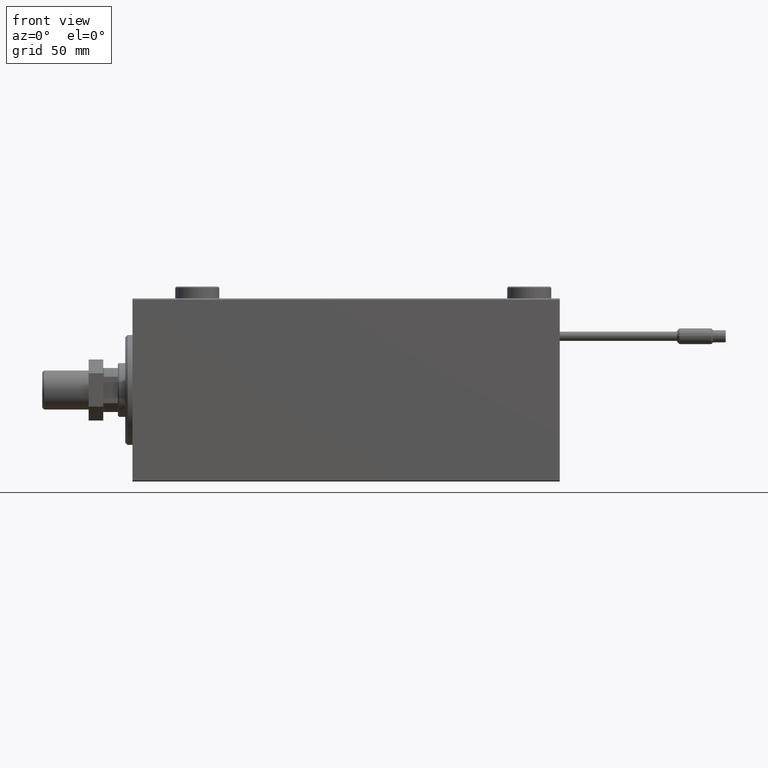
[diagram: clean part render]
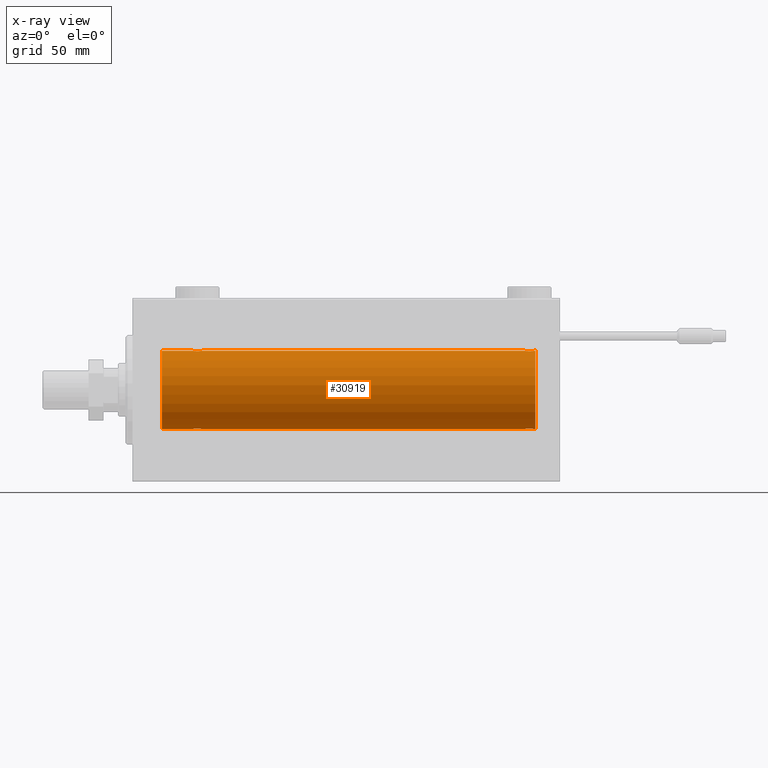
[diagram: x-ray — body ghosted, one internal face saturated and labeled with its STEP entity id]
A machine part, front view, then the same camera in x-ray: the body is ghosted and one INTERNAL B-rep face — a face not visible from any outside direction — is saturated and labeled: STEP entity #30919.
In plain terms, the highlighted cylindrical surface (partial cylindrical patch) has radius 16 mm, axis along (-1, -0, -0).
Its self-contained STEP definition (entity closure, byte-faithful):
#35 = DIRECTION ( 'NONE',  ( -1.000000000000000000, -0.000000000000000000, -0.000000000000000000 ) ) ;
#374 = CARTESIAN_POINT ( 'NONE',  ( 161.6115385917071876, -1.796613193944146980, 15.89889131367403330 ) ) ;
#675 = CARTESIAN_POINT ( 'NONE',  ( 163.7202803347841211, -1.589957129871039099, -15.92097237843275259 ) ) ;
#903 = CARTESIAN_POINT ( 'NONE',  ( 163.3859214996849119, -1.797863738508695963, 15.89874935709251247 ) ) ;
#913 = VERTEX_POINT ( 'NONE', #29705 ) ;
#1306 = CARTESIAN_POINT ( 'NONE',  ( 12.00000000000001066, 0.000000000000000000, 0.000000000000000000 ) ) ;
#1321 = CARTESIAN_POINT ( 'NONE',  ( 27.71821872840285295, -1.591545514129674821, 15.92081325887754595 ) ) ;
#1823 = CARTESIAN_POINT ( 'NONE',  ( 12.00000000000001066, 0.000000000000000000, 16.00000000000000000 ) ) ;
#1840 = CARTESIAN_POINT ( 'NONE',  ( 27.38592149968496514, -1.797863738508701736, 15.89874935709250892 ) ) ;
#2366 = CARTESIAN_POINT ( 'NONE',  ( 27.14376670717340545, -1.898087287925302125, 15.88709570026284545 ) ) ;
#2556 = CARTESIAN_POINT ( 'NONE',  ( 24.50000000000000711, -0.2645044045393414311, -16.00000000000000355 ) ) ;
#3226 = EDGE_CURVE ( 'NONE', #40123, #41906, #20302, .T. ) ;
#3342 = DIRECTION ( 'NONE',  ( -1.000000000000000000, -0.000000000000000000, -0.000000000000000000 ) ) ;
#3791 = VERTEX_POINT ( 'NONE', #24185 ) ;
#4138 = CARTESIAN_POINT ( 'NONE',  ( 164.4467400469564211, -0.5272875822566903681, 15.99312147175147381 ) ) ;
#4457 = CARTESIAN_POINT ( 'NONE',  ( 161.6140785003150029, -1.797863738508707954, -15.89874935709249826 ) ) ;
#4952 = CARTESIAN_POINT ( 'NONE',  ( 163.1437667071733983, -1.898087287925298128, 15.88709570026284723 ) ) ;
#5200 = VECTOR ( 'NONE', #53304, 1000.000000000000000 ) ;
#5311 = LINE ( 'NONE', #41423, #26629 ) ;
#5373 = CARTESIAN_POINT ( 'NONE',  ( 24.90061418674620342, -1.228793614424124714, 15.95381972293797368 ) ) ;
#5514 = CARTESIAN_POINT ( 'NONE',  ( 162.6336666317561708, -1.999904855391120506, -15.87451985347842331 ) ) ;
#5805 = CARTESIAN_POINT ( 'NONE',  ( 27.50320784791317763, -1.735114343256362712, -15.90580722143557502 ) ) ;
#5883 = CARTESIAN_POINT ( 'NONE',  ( 28.44674004695639624, -0.5272875822566815973, 15.99312147175146670 ) ) ;
#6120 = ORIENTED_EDGE ( 'NONE', *, *, #49186, .T. ) ;
#6150 = CARTESIAN_POINT ( 'NONE',  ( 28.24678128854693426, -1.008257970366811751, 15.97001510549667103 ) ) ;
#6332 = CARTESIAN_POINT ( 'NONE',  ( 27.82304844713206293, -1.505501573616970568, -15.92928245046054947 ) ) ;
#6596 = CARTESIAN_POINT ( 'NONE',  ( 28.09938581325380724, -1.228793614424118497, -15.95381972293796835 ) ) ;
#6634 = ORIENTED_EDGE ( 'NONE', *, *, #33338, .T. ) ;
#7135 = DIRECTION ( 'NONE',  ( -1.000000000000000000, -0.000000000000000000, -0.000000000000000000 ) ) ;
#8180 = CARTESIAN_POINT ( 'NONE',  ( 161.8536363712953801, -1.897207606501642996, 15.88720136683947537 ) ) ;
#8484 = CARTESIAN_POINT ( 'NONE',  ( 161.8562332928265732, -1.898087287925310562, -15.88709570026284723 ) ) ;
#8720 = EDGE_CURVE ( 'NONE', #3791, #50768, #50057, .T. ) ;
#8722 = CARTESIAN_POINT ( 'NONE',  ( 162.7608282034936167, -1.987201773464434051, 15.87613558886576115 ) ) ;
#8762 = CARTESIAN_POINT ( 'NONE',  ( 164.2481662700621428, -1.005876079953903268, -15.97016854943969832 ) ) ;
#8908 = B_SPLINE_CURVE_WITH_KNOTS ( 'NONE', 3,
 ( #34448, #30927, #30137, #51140, #5373, #18280, #26348, #46845, #21794, #9669, #38241, #26610, #14492, #47359, #34716, #38491, #2366, #1840, #43062, #1321, #22567, #42542, #6150, #5883, #50873, #17755 ),
 .UNSPECIFIED., .F., .F.,
 ( 4, 2, 2, 2, 2, 2, 2, 2, 2, 2, 2, 2, 4 ),
 ( 0.006259031236593858190, 0.007041222816026928080, 0.007823414395459998838, 0.008214510185176533349, 0.008605605974893067861, 0.008996701764609604107, 0.009387797554326138619, 0.009778893344042673130, 0.01016998913375920938, 0.01056108492347574389, 0.01095218071319227840, 0.01173437229262534048, 0.01251656387205840430 ),
 .UNSPECIFIED. ) ;
#8959 = CARTESIAN_POINT ( 'NONE',  ( 165.0000000000000000, 0.000000000000000000, 16.00000000000000000 ) ) ;
#8971 = VERTEX_POINT ( 'NONE', #1823 ) ;
#8989 = CARTESIAN_POINT ( 'NONE',  ( 160.5524885896873002, -0.5244724041436295003, 15.99321727742820975 ) ) ;
#9669 = CARTESIAN_POINT ( 'NONE',  ( 25.85363637129542624, -1.897207606501653432, 15.88720136683947182 ) ) ;
#9847 = CARTESIAN_POINT ( 'NONE',  ( 27.14636362870458086, -1.897207606501646104, -15.88720136683947537 ) ) ;
#10105 = CARTESIAN_POINT ( 'NONE',  ( 27.01937114547927266, -1.935780515549990088, -15.88248768234623576 ) ) ;
#10640 = CARTESIAN_POINT ( 'NONE',  ( 26.63366663175618498, -1.999904855391105851, -15.87451985347842687 ) ) ;
#11381 = VERTEX_POINT ( 'NONE', #12411 ) ;
#12091 = CARTESIAN_POINT ( 'NONE',  ( 165.0000000000000000, 1.959434878635765131E-15, -16.00000000000000000 ) ) ;
#12221 = CARTESIAN_POINT ( 'NONE',  ( 163.8210433480340384, -1.507256214862776167, 15.92911555180481820 ) ) ;
#12411 = CARTESIAN_POINT ( 'NONE',  ( 12.00000000000001066, 1.959434878635765131E-15, -16.00000000000000000 ) ) ;
#12627 = LINE ( 'NONE', #36357, #5200 ) ;
#12755 = CARTESIAN_POINT ( 'NONE',  ( 162.3663333682438008, -1.999904855391108072, 15.87451985347842687 ) ) ;
#12880 = VERTEX_POINT ( 'NONE', #29004 ) ;
#13066 = CARTESIAN_POINT ( 'NONE',  ( 162.2391717965064117, -1.987201773464449595, -15.87613558886576115 ) ) ;
#14159 = CARTESIAN_POINT ( 'NONE',  ( 25.98335998918949841, -1.936513707523809469, -15.88239801746204805 ) ) ;
#14346 = ORIENTED_EDGE ( 'NONE', *, *, #40198, .F. ) ;
#14492 = CARTESIAN_POINT ( 'NONE',  ( 26.36633336824380436, -1.999904855391111402, 15.87451985347842687 ) ) ;
#14528 = AXIS2_PLACEMENT_3D ( 'NONE', #1306, #46831, #33656 ) ;
#14680 = CARTESIAN_POINT ( 'NONE',  ( 24.50000000000000000, -2.931586893697621157E-15, -16.00000000000000000 ) ) ;
#16258 = CARTESIAN_POINT ( 'NONE',  ( 163.5007836575340718, -1.736521253711146517, 15.90565326803671731 ) ) ;
#16446 = CARTESIAN_POINT ( 'NONE',  ( 165.0000000000000000, 1.959434878635765131E-15, -16.00000000000000000 ) ) ;
#16942 = EDGE_CURVE ( 'NONE', #21795, #43245, #41193, .T. ) ;
#17067 = CARTESIAN_POINT ( 'NONE',  ( 160.7518337299378572, -1.005876079953900604, 15.97016854943970188 ) ) ;
#17103 = CARTESIAN_POINT ( 'NONE',  ( 163.3884614082928124, -1.796613193944159637, -15.89889131367402975 ) ) ;
#17237 = ORIENTED_EDGE ( 'NONE', *, *, #48434, .T. ) ;
#17382 = CARTESIAN_POINT ( 'NONE',  ( 161.4992163424659566, -1.736521253711160728, -15.90565326803670665 ) ) ;
#17755 = CARTESIAN_POINT ( 'NONE',  ( 28.49999999999999645, -1.207828523974853969E-15, 16.00000000000000000 ) ) ;
#17812 = AXIS2_PLACEMENT_3D ( 'NONE', #48336, #3342, #48061 ) ;
#18280 = CARTESIAN_POINT ( 'NONE',  ( 25.17695155286792286, -1.505501573616977673, 15.92928245046054947 ) ) ;
#18288 = EDGE_CURVE ( 'NONE', #11381, #8971, #30041, .T. ) ;
#18728 = CARTESIAN_POINT ( 'NONE',  ( 27.38846140829280529, -1.796613193944152753, -15.89889131367403330 ) ) ;
#18919 = B_SPLINE_CURVE_WITH_KNOTS ( 'NONE', 3,
 ( #26276, #47020, #22229, #39209, #6596, #6332, #43253, #5805, #18728, #9847, #10105, #35161, #10640, #51858, #21976, #14159, #31388, #23019, #39476, #43783, #35431, #27327, #38416, #26533, #2556, #14680 ),
 .UNSPECIFIED., .F., .F.,
 ( 4, 2, 2, 2, 2, 2, 2, 2, 2, 2, 2, 2, 4 ),
 ( 0.006259031236593877272, 0.007041222816026943693, 0.007823414395460009246, 0.008214510185176542023, 0.008605605974893074800, 0.008996701764609607577, 0.009387797554326140353, 0.009778893344042673130, 0.01016998913375920591, 0.01056108492347573868, 0.01095218071319227146, 0.01173437229262534222, 0.01251656387205841471 ),
 .UNSPECIFIED. ) ;
#18979 = ORIENTED_EDGE ( 'NONE', *, *, #37572, .T. ) ;
#19257 = CYLINDRICAL_SURFACE ( 'NONE', #17812, 16.00000000000000000 ) ;
#20254 = CARTESIAN_POINT ( 'NONE',  ( 165.0000000000000000, 1.959434878635765131E-15, -16.00000000000000000 ) ) ;
#20302 = B_SPLINE_CURVE_WITH_KNOTS ( 'NONE', 3,
 ( #34086, #30024, #49440, #8762, #25186, #37590, #675, #21939, #17103, #33552, #46205, #41900, #5514, #49972, #13066, #45400, #8484, #4457, #17382, #29506, #43741, #34604, #26756, #22191, #22714, #46980 ),
 .UNSPECIFIED., .F., .F.,
 ( 4, 2, 2, 2, 2, 2, 2, 2, 2, 2, 2, 2, 4 ),
 ( 0.006259031236593847781, 0.007041222816026931550, 0.007823414395460014450, 0.008214510185176555901, 0.008605605974893097351, 0.008996701764609638802, 0.009387797554326181987, 0.009778893344042723437, 0.01016998913375926489, 0.01056108492347580634, 0.01095218071319234779, 0.01173437229262537171, 0.01251656387205839736 ),
 .UNSPECIFIED. ) ;
#20311 = CARTESIAN_POINT ( 'NONE',  ( 161.1769515528679051, -1.505501573616961686, 15.92928245046055302 ) ) ;
#20316 = FACE_OUTER_BOUND ( 'NONE', #34727, .T. ) ;
#20941 = DIRECTION ( 'NONE',  ( -1.000000000000000000, -0.000000000000000000, -0.000000000000000000 ) ) ;
#21004 = EDGE_CURVE ( 'NONE', #41906, #12880, #12627, .T. ) ;
#21761 = ORIENTED_EDGE ( 'NONE', *, *, #50158, .F. ) ;
#21794 = CARTESIAN_POINT ( 'NONE',  ( 25.61153859170720537, -1.796613193944160969, 15.89889131367403685 ) ) ;
#21795 = VERTEX_POINT ( 'NONE', #16446 ) ;
#21939 = CARTESIAN_POINT ( 'NONE',  ( 163.5032078479131314, -1.735114343256374925, -15.90580722143557857 ) ) ;
#21976 = CARTESIAN_POINT ( 'NONE',  ( 26.23917179650637266, -1.987201773464430055, -15.87613558886576470 ) ) ;
#22191 = CARTESIAN_POINT ( 'NONE',  ( 160.5532599530435789, -0.5272875822567044679, -15.99312147175147025 ) ) ;
#22229 = CARTESIAN_POINT ( 'NONE',  ( 28.44751141031268915, -0.5244724041436300555, -15.99321727742820620 ) ) ;
#22567 = CARTESIAN_POINT ( 'NONE',  ( 27.82104334803405266, -1.507256214862787713, 15.92911555180482530 ) ) ;
#22668 = CARTESIAN_POINT ( 'NONE',  ( 28.49999999999999645, -1.207828523974853969E-15, 16.00000000000000000 ) ) ;
#22714 = CARTESIAN_POINT ( 'NONE',  ( 160.5000000000000000, -0.2645044045393602494, -16.00000000000000000 ) ) ;
#23019 = CARTESIAN_POINT ( 'NONE',  ( 25.61407850031505617, -1.797863738508699294, -15.89874935709251247 ) ) ;
#23055 = VECTOR ( 'NONE', #53050, 1000.000000000000000 ) ;
#23419 = CARTESIAN_POINT ( 'NONE',  ( 164.4999999999999716, -0.2645044045393381005, 16.00000000000000711 ) ) ;
#23477 = VECTOR ( 'NONE', #35, 1000.000000000000000 ) ;
#23665 = EDGE_CURVE ( 'NONE', #43245, #50768, #34563, .T. ) ;
#23715 = ORIENTED_EDGE ( 'NONE', *, *, #18288, .T. ) ;
#24185 = CARTESIAN_POINT ( 'NONE',  ( 160.4999999999999716, -2.738767290746308786E-23, 16.00000000000000000 ) ) ;
#24604 = CARTESIAN_POINT ( 'NONE',  ( 161.2797196652158505, -1.589957129871026664, 15.92097237843274193 ) ) ;
#24751 = LINE ( 'NONE', #12091, #23055 ) ;
#24810 = LINE ( 'NONE', #20254, #23477 ) ;
#24848 = VERTEX_POINT ( 'NONE', #22668 ) ;
#25186 = CARTESIAN_POINT ( 'NONE',  ( 164.0993858132537753, -1.228793614424117386, -15.95381972293797013 ) ) ;
#25417 = CARTESIAN_POINT ( 'NONE',  ( 161.9806288545207167, -1.935780515549996750, 15.88248768234623221 ) ) ;
#25712 = ORIENTED_EDGE ( 'NONE', *, *, #21004, .T. ) ;
#26276 = CARTESIAN_POINT ( 'NONE',  ( 28.49999999999999645, 1.959434851239213200E-15, -16.00000000000000000 ) ) ;
#26348 = CARTESIAN_POINT ( 'NONE',  ( 25.27971966521589664, -1.589957129871035768, 15.92097237843274549 ) ) ;
#26533 = CARTESIAN_POINT ( 'NONE',  ( 24.55325995304361086, -0.5272875822566835957, -15.99312147175147736 ) ) ;
#26610 = CARTESIAN_POINT ( 'NONE',  ( 26.23629537121825095, -1.986819684797424435, 15.87618369521983475 ) ) ;
#26629 = VECTOR ( 'NONE', #20941, 1000.000000000000000 ) ;
#26756 = CARTESIAN_POINT ( 'NONE',  ( 160.7532187114530586, -1.008257970366834178, -15.97001510549667458 ) ) ;
#27327 = CARTESIAN_POINT ( 'NONE',  ( 24.90236864042802267, -1.231048876942801407, -15.95364199493483426 ) ) ;
#27611 = CARTESIAN_POINT ( 'NONE',  ( 165.0000000000000000, 0.000000000000000000, 16.00000000000000000 ) ) ;
#28653 = CARTESIAN_POINT ( 'NONE',  ( 164.0976313595719489, -1.231048876942790749, 15.95364199493483959 ) ) ;
#29004 = CARTESIAN_POINT ( 'NONE',  ( 28.49999999999999645, 1.959434851239213200E-15, -16.00000000000000000 ) ) ;
#29506 = CARTESIAN_POINT ( 'NONE',  ( 161.2817812715971115, -1.591545514129687922, -15.92081325887754417 ) ) ;
#29705 = CARTESIAN_POINT ( 'NONE',  ( 24.50000000000000000, -2.739635037742051899E-23, 16.00000000000000000 ) ) ;
#29714 = ORIENTED_EDGE ( 'NONE', *, *, #3226, .T. ) ;
#29988 = DIRECTION ( 'NONE',  ( -1.000000000000000000, 0.000000000000000000, 0.000000000000000000 ) ) ;
#30024 = CARTESIAN_POINT ( 'NONE',  ( 164.5000000000000284, -0.2611263091397180158, -16.00000000000000000 ) ) ;
#30041 = CIRCLE ( 'NONE', #14528, 16.00000000000000000 ) ;
#30137 = CARTESIAN_POINT ( 'NONE',  ( 24.55248858968731085, -0.5244724041436337192, 15.99321727742820975 ) ) ;
#30257 = CARTESIAN_POINT ( 'NONE',  ( 164.4999999999999716, -5.805030688536432137E-15, 16.00000000000000000 ) ) ;
#30919 = ADVANCED_FACE ( 'NONE', ( #20316 ), #19257, .F. ) ;
#30927 = CARTESIAN_POINT ( 'NONE',  ( 24.50000000000000355, -0.2611263091397209579, 16.00000000000000000 ) ) ;
#31388 = CARTESIAN_POINT ( 'NONE',  ( 25.85623329282660166, -1.898087287925298794, -15.88709570026284545 ) ) ;
#33182 = ORIENTED_EDGE ( 'NONE', *, *, #16942, .F. ) ;
#33338 = EDGE_CURVE ( 'NONE', #35688, #11381, #24751, .T. ) ;
#33552 = CARTESIAN_POINT ( 'NONE',  ( 163.1463636287045631, -1.897207606501654764, -15.88720136683947537 ) ) ;
#33656 = DIRECTION ( 'NONE',  ( 0.000000000000000000, 0.000000000000000000, 1.000000000000000000 ) ) ;
#33790 = CARTESIAN_POINT ( 'NONE',  ( 160.4999999999999716, -2.738767290746308786E-23, 16.00000000000000000 ) ) ;
#34086 = CARTESIAN_POINT ( 'NONE',  ( 164.4999999999999716, 1.959434851248285101E-15, -16.00000000000000000 ) ) ;
#34448 = CARTESIAN_POINT ( 'NONE',  ( 24.50000000000000000, -2.739635037742051899E-23, 16.00000000000000000 ) ) ;
#34563 = LINE ( 'NONE', #45899, #51717 ) ;
#34604 = CARTESIAN_POINT ( 'NONE',  ( 160.9023686404280227, -1.231048876942829384, -15.95364199493483959 ) ) ;
#34716 = CARTESIAN_POINT ( 'NONE',  ( 26.76082820349364866, -1.987201773464435828, 15.87613558886576470 ) ) ;
#34727 = EDGE_LOOP ( 'NONE', ( #33182, #17237, #29714, #25712, #6120, #6634, #23715, #21761, #18979, #14346, #49038, #50094 ) ) ;
#35161 = CARTESIAN_POINT ( 'NONE',  ( 26.76370462878175260, -1.986819684797417995, -15.87618369521984185 ) ) ;
#35431 = CARTESIAN_POINT ( 'NONE',  ( 25.17895665196594379, -1.507256214862784161, -15.92911555180481820 ) ) ;
#35688 = VERTEX_POINT ( 'NONE', #36322 ) ;
#36322 = CARTESIAN_POINT ( 'NONE',  ( 24.50000000000000000, -2.931586893697621157E-15, -16.00000000000000000 ) ) ;
#36357 = CARTESIAN_POINT ( 'NONE',  ( 165.0000000000000000, 1.959434878635765131E-15, -16.00000000000000000 ) ) ;
#36747 = CARTESIAN_POINT ( 'NONE',  ( 162.2362953712182332, -1.986819684797424435, 15.87618369521983830 ) ) ;
#37572 = EDGE_CURVE ( 'NONE', #913, #24848, #8908, .T. ) ;
#37590 = CARTESIAN_POINT ( 'NONE',  ( 163.8230484471320949, -1.505501573616972344, -15.92928245046055657 ) ) ;
#38085 = DIRECTION ( 'NONE',  ( -1.000000000000000000, -0.000000000000000000, -0.000000000000000000 ) ) ;
#38089 = CARTESIAN_POINT ( 'NONE',  ( 165.0000000000000000, 0.000000000000000000, 0.000000000000000000 ) ) ;
#38241 = CARTESIAN_POINT ( 'NONE',  ( 25.98062885452072734, -1.935780515549995862, 15.88248768234623221 ) ) ;
#38416 = CARTESIAN_POINT ( 'NONE',  ( 24.75321871145306218, -1.008257970366813749, -15.97001510549667458 ) ) ;
#38491 = CARTESIAN_POINT ( 'NONE',  ( 27.01664001081050515, -1.936513707523814354, 15.88239801746204805 ) ) ;
#39209 = CARTESIAN_POINT ( 'NONE',  ( 28.24816627006211078, -1.005876079953899049, -15.97016854943970188 ) ) ;
#39476 = CARTESIAN_POINT ( 'NONE',  ( 25.49921634246596014, -1.736521253711144963, -15.90565326803671375 ) ) ;
#40123 = VERTEX_POINT ( 'NONE', #44136 ) ;
#40198 = EDGE_CURVE ( 'NONE', #3791, #24848, #5311, .T. ) ;
#41193 = CIRCLE ( 'NONE', #43772, 16.00000000000000000 ) ;
#41423 = CARTESIAN_POINT ( 'NONE',  ( 165.0000000000000000, 0.000000000000000000, 16.00000000000000000 ) ) ;
#41863 = CARTESIAN_POINT ( 'NONE',  ( 163.0166400108104767, -1.936513707523814354, 15.88239801746205160 ) ) ;
#41900 = CARTESIAN_POINT ( 'NONE',  ( 162.7637046287817668, -1.986819684797435759, -15.87618369521983830 ) ) ;
#41906 = VERTEX_POINT ( 'NONE', #45390 ) ;
#42542 = CARTESIAN_POINT ( 'NONE',  ( 28.09763135957198799, -1.231048876942802961, 15.95364199493483781 ) ) ;
#43062 = CARTESIAN_POINT ( 'NONE',  ( 27.50078365753405407, -1.736521253711149182, 15.90565326803671375 ) ) ;
#43245 = VERTEX_POINT ( 'NONE', #8959 ) ;
#43253 = CARTESIAN_POINT ( 'NONE',  ( 27.72028033478412112, -1.589957129871027330, -15.92097237843274904 ) ) ;
#43741 = CARTESIAN_POINT ( 'NONE',  ( 161.1789566519659331, -1.507256214862809918, -15.92911555180481464 ) ) ;
#43772 = AXIS2_PLACEMENT_3D ( 'NONE', #38089, #29988, #50988 ) ;
#43783 = CARTESIAN_POINT ( 'NONE',  ( 25.28178127159713995, -1.591545514129671046, -15.92081325887754417 ) ) ;
#44136 = CARTESIAN_POINT ( 'NONE',  ( 164.4999999999999716, 1.959434851248285101E-15, -16.00000000000000000 ) ) ;
#45100 = CARTESIAN_POINT ( 'NONE',  ( 164.2467812885468845, -1.008257970366816636, 15.97001510549667103 ) ) ;
#45106 = VECTOR ( 'NONE', #7135, 1000.000000000000000 ) ;
#45390 = CARTESIAN_POINT ( 'NONE',  ( 160.4999999999999716, -2.238448963845692285E-14, -16.00000000000000000 ) ) ;
#45400 = CARTESIAN_POINT ( 'NONE',  ( 161.9833599891895233, -1.936513707523834338, -15.88239801746204805 ) ) ;
#45629 = CARTESIAN_POINT ( 'NONE',  ( 162.6308040857657318, -2.000094120337579717, 15.87449600834271379 ) ) ;
#45899 = CARTESIAN_POINT ( 'NONE',  ( 165.0000000000000000, 0.000000000000000000, 16.00000000000000000 ) ) ;
#46205 = CARTESIAN_POINT ( 'NONE',  ( 163.0193711454792549, -1.935780515550008962, -15.88248768234623576 ) ) ;
#46831 = DIRECTION ( 'NONE',  ( -1.000000000000000000, 0.000000000000000000, 0.000000000000000000 ) ) ;
#46845 = CARTESIAN_POINT ( 'NONE',  ( 25.49679215208682592, -1.735114343256370262, 15.90580722143557502 ) ) ;
#46980 = CARTESIAN_POINT ( 'NONE',  ( 160.4999999999999716, -2.238448963845692285E-14, -16.00000000000000000 ) ) ;
#47020 = CARTESIAN_POINT ( 'NONE',  ( 28.50000000000000355, -0.2611263091397186265, -16.00000000000000355 ) ) ;
#47359 = CARTESIAN_POINT ( 'NONE',  ( 26.63080408576578861, -2.000094120337581050, 15.87449600834271735 ) ) ;
#48061 = DIRECTION ( 'NONE',  ( 0.000000000000000000, 0.000000000000000000, 1.000000000000000000 ) ) ;
#48336 = CARTESIAN_POINT ( 'NONE',  ( 165.0000000000000000, 0.000000000000000000, 0.000000000000000000 ) ) ;
#48434 = EDGE_CURVE ( 'NONE', #21795, #40123, #24810, .T. ) ;
#48884 = LINE ( 'NONE', #27611, #45106 ) ;
#49038 = ORIENTED_EDGE ( 'NONE', *, *, #8720, .T. ) ;
#49132 = CARTESIAN_POINT ( 'NONE',  ( 163.7182187284028032, -1.591545514129670824, 15.92081325887754595 ) ) ;
#49186 = EDGE_CURVE ( 'NONE', #12880, #35688, #18919, .T. ) ;
#49440 = CARTESIAN_POINT ( 'NONE',  ( 164.4475114103126430, -0.5244724041436316098, -15.99321727742820975 ) ) ;
#49663 = CARTESIAN_POINT ( 'NONE',  ( 160.9006141867461679, -1.228793614424107172, 15.95381972293797013 ) ) ;
#49890 = CARTESIAN_POINT ( 'NONE',  ( 164.4999999999999716, -5.805030688536432137E-15, 16.00000000000000000 ) ) ;
#49931 = CARTESIAN_POINT ( 'NONE',  ( 161.4967921520867549, -1.735114343256362490, 15.90580722143557502 ) ) ;
#49972 = CARTESIAN_POINT ( 'NONE',  ( 162.3691959142342398, -2.000094120337590375, -15.87449600834270313 ) ) ;
#50057 = B_SPLINE_CURVE_WITH_KNOTS ( 'NONE', 3,
 ( #33790, #50204, #8989, #17067, #49663, #20311, #24604, #49931, #374, #8180, #25417, #36747, #12755, #45629, #8722, #41863, #4952, #903, #16258, #49132, #12221, #28653, #45100, #4138, #23419, #30257 ),
 .UNSPECIFIED., .F., .F.,
 ( 4, 2, 2, 2, 2, 2, 2, 2, 2, 2, 2, 2, 4 ),
 ( 0.006259031236593856455, 0.007041222816026924611, 0.007823414395459991899, 0.008214510185176526411, 0.008605605974893060922, 0.008996701764609595434, 0.009387797554326129945, 0.009778893344042662722, 0.01016998913375919723, 0.01056108492347573174, 0.01095218071319226452, 0.01173437229262533181, 0.01251656387205839910 ),
 .UNSPECIFIED. ) ;
#50094 = ORIENTED_EDGE ( 'NONE', *, *, #23665, .F. ) ;
#50158 = EDGE_CURVE ( 'NONE', #913, #8971, #48884, .T. ) ;
#50204 = CARTESIAN_POINT ( 'NONE',  ( 160.4999999999999716, -0.2611263091397192926, 16.00000000000000000 ) ) ;
#50768 = VERTEX_POINT ( 'NONE', #49890 ) ;
#50873 = CARTESIAN_POINT ( 'NONE',  ( 28.49999999999999289, -0.2645044045393371013, 16.00000000000000000 ) ) ;
#50988 = DIRECTION ( 'NONE',  ( 0.000000000000000000, 0.000000000000000000, 1.000000000000000000 ) ) ;
#51140 = CARTESIAN_POINT ( 'NONE',  ( 24.75183372993787856, -1.005876079953904600, 15.97016854943970543 ) ) ;
#51717 = VECTOR ( 'NONE', #38085, 1000.000000000000000 ) ;
#51858 = CARTESIAN_POINT ( 'NONE',  ( 26.36919591423421139, -2.000094120337574388, -15.87449600834271024 ) ) ;
#53050 = DIRECTION ( 'NONE',  ( -1.000000000000000000, -0.000000000000000000, -0.000000000000000000 ) ) ;
#53304 = DIRECTION ( 'NONE',  ( -1.000000000000000000, -0.000000000000000000, -0.000000000000000000 ) ) ;